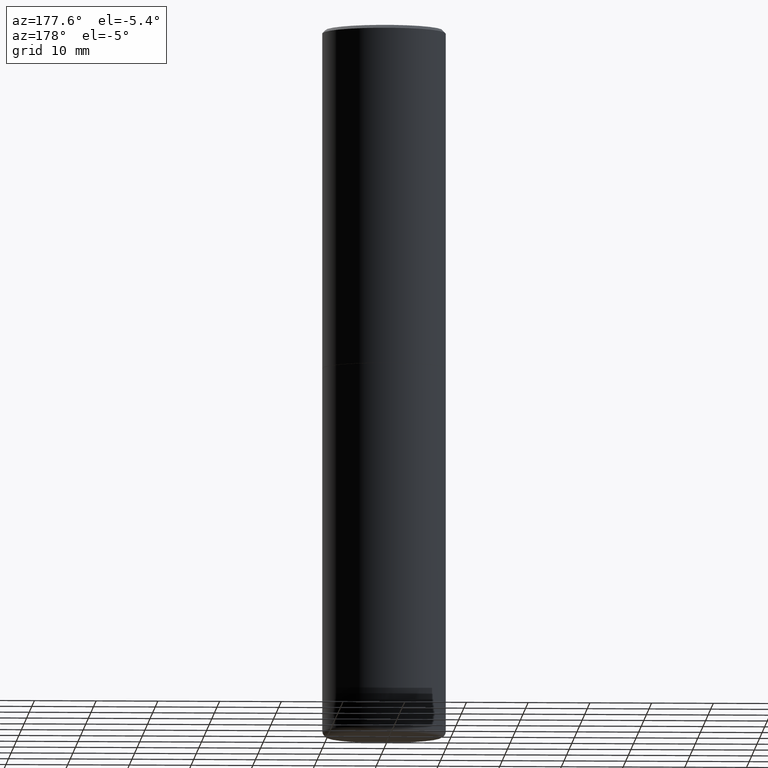
[diagram: clean part render]
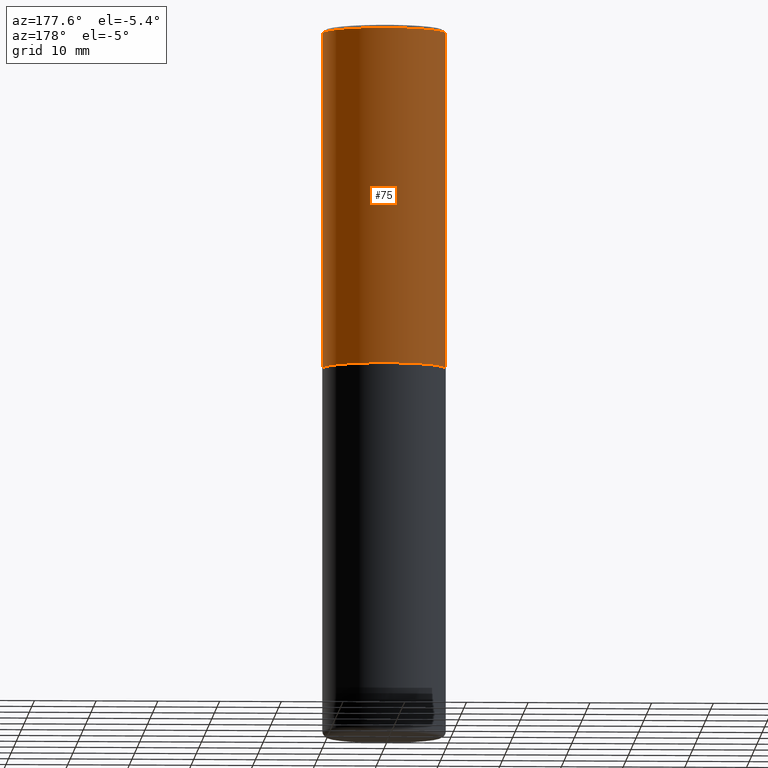
[diagram: same view with one face highlighted and labeled with its STEP entity id]
A machine part, auxiliary view. The second image highlights one B-rep face of the part: STEP entity #75.
In plain terms, the highlighted cylindrical surface (partial cylindrical patch) has radius 10 mm, axis along (-0, 0, 1).
Its self-contained STEP definition (entity closure, byte-faithful):
#12 = CARTESIAN_POINT ( 'NONE',  ( 0.000000000000000000, 0.000000000000000000, 0.000000000000000000 ) ) ;
#19 = CARTESIAN_POINT ( 'NONE',  ( -0.3937000000000000499, 2.679362779428219918E-15, -0.02000000000000008715 ) ) ;
#39 = VERTEX_POINT ( 'NONE', #19 ) ;
#43 = ORIENTED_EDGE ( 'NONE', *, *, #79, .T. ) ;
#54 = CARTESIAN_POINT ( 'NONE',  ( 0.3937000000000001609, -2.749192406205084400E-15, 1.919750796630860732E-29 ) ) ;
#58 = VECTOR ( 'NONE', #332, 39.37007874015748143 ) ;
#60 = EDGE_CURVE ( 'NONE', #184, #39, #169, .T. ) ;
#75 = ADVANCED_FACE ( 'NONE', ( #76 ), #108, .T. ) ;
#76 = FACE_OUTER_BOUND ( 'NONE', #144, .T. ) ;
#79 = EDGE_CURVE ( 'NONE', #331, #39, #135, .T. ) ;
#83 = DIRECTION ( 'NONE',  ( -2.445468806185136597E-29, 3.491481338843145583E-15, 1.000000000000000000 ) ) ;
#86 = CARTESIAN_POINT ( 'NONE',  ( 4.890937612370294178E-31, -6.982962677686321191E-17, -0.02000000000000008715 ) ) ;
#91 = AXIS2_PLACEMENT_3D ( 'NONE', #86, #336, #166 ) ;
#97 = VECTOR ( 'NONE', #402, 39.37007874015748143 ) ;
#108 = CYLINDRICAL_SURFACE ( 'NONE', #221, 0.3937000000000001609 ) ;
#135 = LINE ( 'NONE', #140, #97 ) ;
#140 = CARTESIAN_POINT ( 'NONE',  ( -0.3937000000000001609, 2.797406750687515575E-15, -1.936584745033357296E-29 ) ) ;
#144 = EDGE_LOOP ( 'NONE', ( #409, #43, #360, #276 ) ) ;
#145 = EDGE_CURVE ( 'NONE', #393, #331, #152, .T. ) ;
#147 = EDGE_CURVE ( 'NONE', #393, #184, #268, .T. ) ;
#152 = CIRCLE ( 'NONE', #200, 0.3937000000000002720 ) ;
#166 = DIRECTION ( 'NONE',  ( 1.000000000000000000, -6.982962677686265922E-15, 0.000000000000000000 ) ) ;
#169 = CIRCLE ( 'NONE', #91, 0.3937000000000000499 ) ;
#184 = VERTEX_POINT ( 'NONE', #224 ) ;
#200 = AXIS2_PLACEMENT_3D ( 'NONE', #375, #83, #338 ) ;
#221 = AXIS2_PLACEMENT_3D ( 'NONE', #12, #400, #394 ) ;
#224 = CARTESIAN_POINT ( 'NONE',  ( 0.3937000000000000499, -2.770807688499515734E-15, -0.02000000000000008715 ) ) ;
#235 = CARTESIAN_POINT ( 'NONE',  ( 0.3937000000000002720, -1.030615461599718763E-14, -2.164399999999999658 ) ) ;
#268 = LINE ( 'NONE', #54, #58 ) ;
#276 = ORIENTED_EDGE ( 'NONE', *, *, #147, .F. ) ;
#302 = CARTESIAN_POINT ( 'NONE',  ( -0.3937000000000003830, -1.015989167596963746E-15, -2.164399999999999658 ) ) ;
#331 = VERTEX_POINT ( 'NONE', #302 ) ;
#332 = DIRECTION ( 'NONE',  ( -2.445468806185136877E-29, 3.491481338843145188E-15, 1.000000000000000000 ) ) ;
#336 = DIRECTION ( 'NONE',  ( -2.445468806185136597E-29, 3.491481338843145583E-15, 1.000000000000000000 ) ) ;
#338 = DIRECTION ( 'NONE',  ( 1.000000000000000000, -6.982962677686269077E-15, 0.000000000000000000 ) ) ;
#360 = ORIENTED_EDGE ( 'NONE', *, *, #60, .F. ) ;
#375 = CARTESIAN_POINT ( 'NONE',  ( 5.292972684107107621E-29, -7.556962209792102838E-15, -2.164399999999999658 ) ) ;
#393 = VERTEX_POINT ( 'NONE', #235 ) ;
#394 = DIRECTION ( 'NONE',  ( 1.000000000000000000, -6.982962677686266711E-15, 4.876176775795935793E-29 ) ) ;
#400 = DIRECTION ( 'NONE',  ( -2.445468806185136597E-29, 3.491481338843145583E-15, 1.000000000000000000 ) ) ;
#402 = DIRECTION ( 'NONE',  ( -2.445468806185136877E-29, 3.491481338843145188E-15, 1.000000000000000000 ) ) ;
#409 = ORIENTED_EDGE ( 'NONE', *, *, #145, .T. ) ;